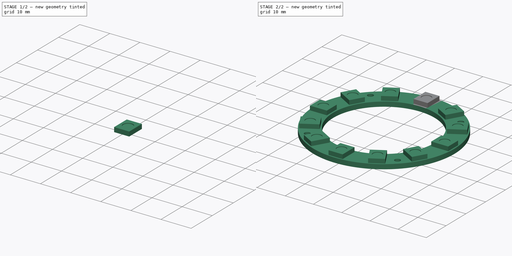
[diagram: build sequence overview — one tinted view per stage of 2, left to right]
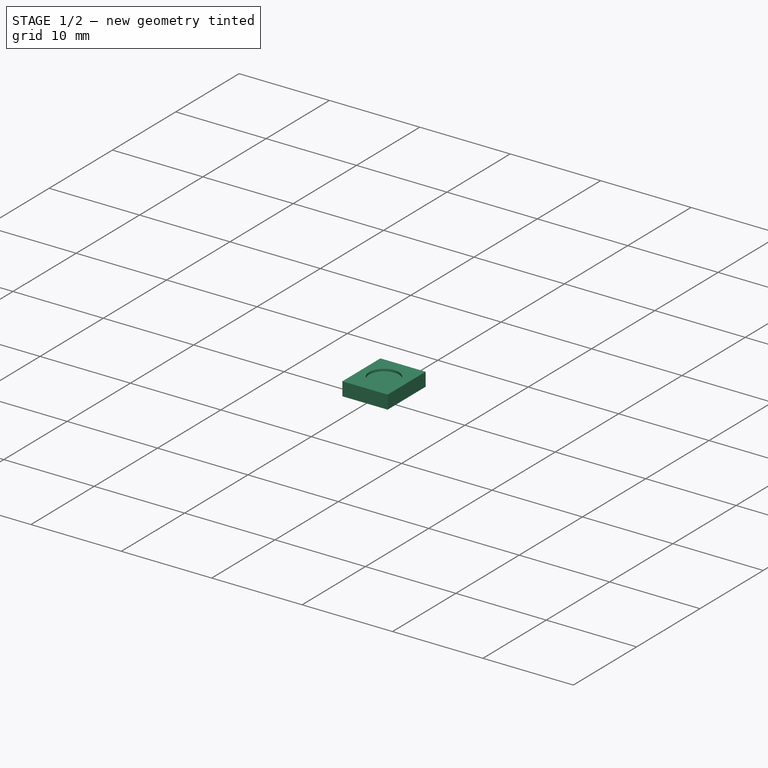
[diagram: stage 1 of 2 — iso view after this stage's code; geometry added in this stage tinted green]
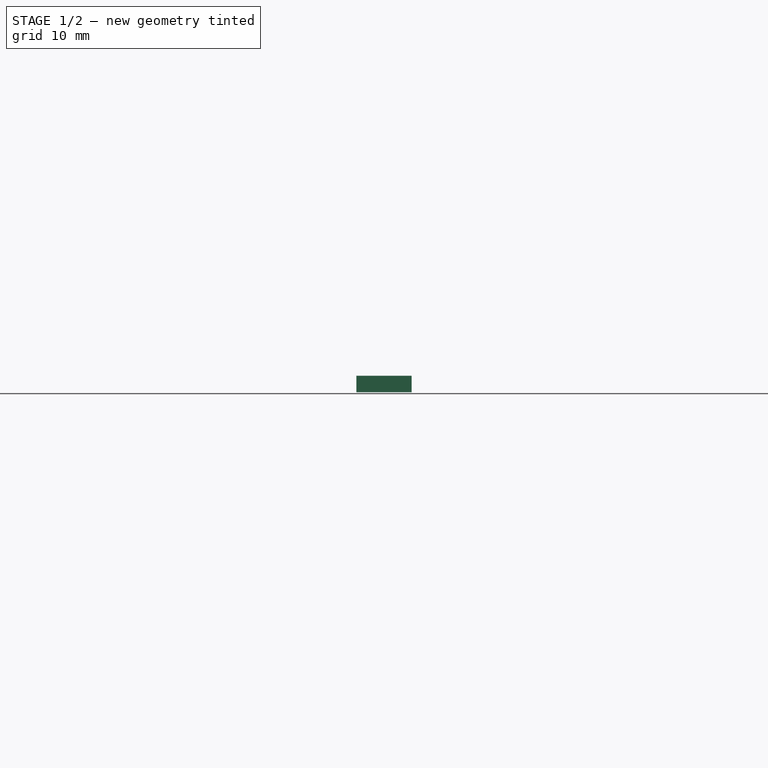
[diagram: stage 1 of 2 — front view after this stage's code; geometry added in this stage tinted green]
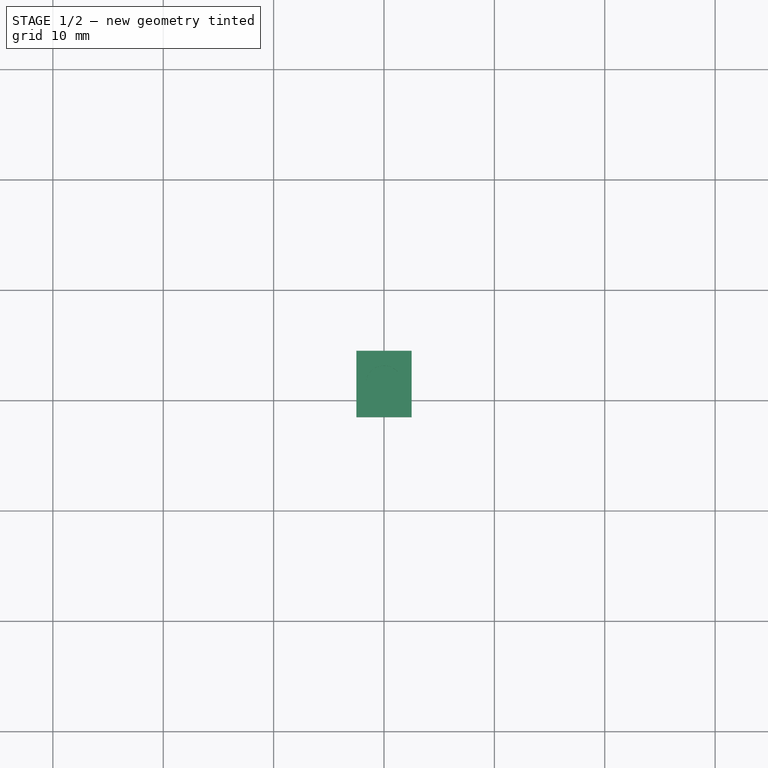
[diagram: stage 1 of 2 — top view after this stage's code; geometry added in this stage tinted green]
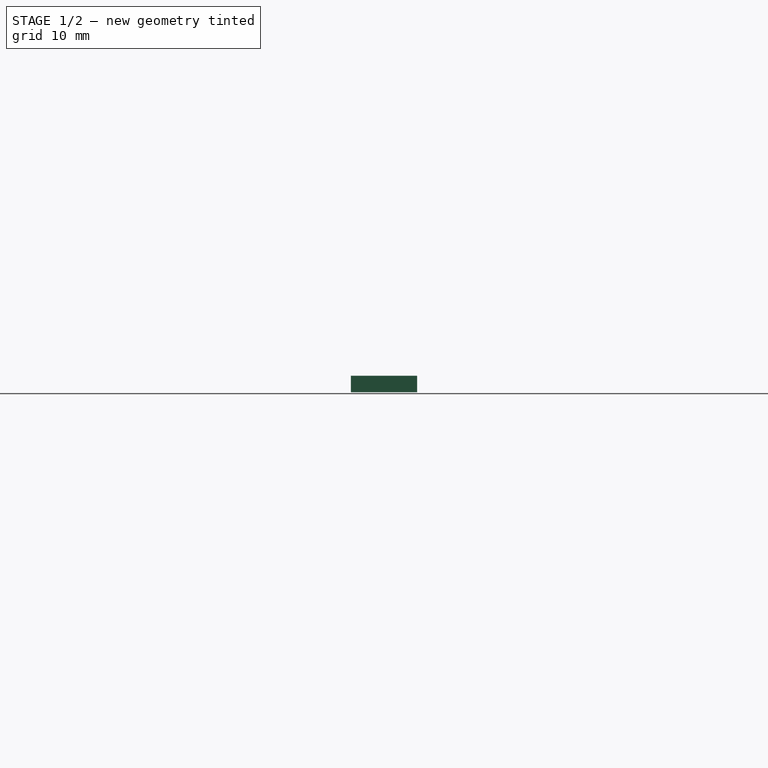
[diagram: stage 1 of 2 — right view after this stage's code; geometry added in this stage tinted green]
FCSTD DOCUMENT  (FreeCAD 0.18R4 (GitTag))
Label: neopixel_rgb_ring_5cm
License: CreativeCommons Attribution-NonCommercial
LicenseURL: http://creativecommons.org/licenses/by-nc/4.0/
objects: Sketcher::SketchObject×3, PartDesign::Pad×2, PartDesign::Body×2, PartDesign::ShapeBinder×1, PartDesign::Pocket×1, Part::FeaturePython×1, App::Part×1
note: 13 computed .brp shape members not serialized (recipe doc carries the construction recipe); baked Part::Feature solids carry a one-line shape summary decoded from their .brp

FEATURE [PartDesign::Body] Body
  Group = -> [Sketch,Pad]
  Origin = -> Origin001
  Tip = -> Pad
FEATURE [PartDesign::ShapeBinder] CopyPad
  Placement = pos=(0,0,1.65) rot=(0,0,1;0rad)
  TraceSupport = false
FEATURE [Sketcher::SketchObject] Sketch001
  MapMode = 5
  Placement = pos=(0,0,1.65) rot=(0,0,1;0rad)
  Support = -> [CopyPad]
  sketch-geometry (6):
    g0: LineSegment StartX=-2.5 StartY=18.5 StartZ=0 EndX=2.5 EndY=18.5 EndZ=0
    g1: LineSegment StartX=2.5 StartY=18.5 StartZ=0 EndX=2.5 EndY=24.5 EndZ=0
    g2: LineSegment StartX=2.5 StartY=24.5 StartZ=0 EndX=-2.5 EndY=24.5 EndZ=0
    g3: LineSegment StartX=-2.5 StartY=24.5 StartZ=0 EndX=-2.5 EndY=18.5 EndZ=0
    g4: LineSegment [constr] StartX=0 StartY=0 StartZ=0 EndX=0 EndY=18 EndZ=0
    g5: LineSegment [constr] StartX=0 StartY=0 StartZ=0 EndX=0 EndY=25 EndZ=0
  constraints (17):
    c: Coincident(g0,g1)
    c: Coincident(g1,g2)
    c: Coincident(g2,g3)
    c: Coincident(g3,g0)
    c: Horizontal(g0)
    c: Horizontal(g2)
    c: Vertical(g1)
    c: Vertical(g3)
    c: DistanceX(g2,g2) = 5
    c: DistanceY(g1,g1) = 6
    c: Coincident(g4,g-1)
    c: PointOnObject(g4,g-2)
    c: Coincident(g5,g-1)
    c: DistanceY(g4,g4) = 18
    c: DistanceY(g5,g5) = 25
    c: Symmetric(g0,g0,g5)
    c: DistanceY(g4,g0) = 0.5
FEATURE [PartDesign::Pad] Pad001
  Length = 1.5
  Length2 = 100
  Placement = pos=(0,0,1.65) rot=(0,0,1;0rad)
  Profile = -> Sketch001
  Type = 0
FEATURE [Sketcher::SketchObject] Sketch002
  MapMode = 5
  Placement = pos=(0,0,3.15) rot=(0,0,1;0rad)
  Support = -> [Pad001]
  sketch-geometry (1):
    g0: Circle CenterX=0 CenterY=21.5 CenterZ=0 NormalX=0 NormalY=0 NormalZ=1 AngleXU=0 Radius=1.65
  constraints (3):
    c: PointOnObject(g0,g-2)
    c: DistanceY(g-1,g0) = 21.5
    c: Radius(g0) = 1.65
FEATURE [PartDesign::Pocket] Pocket
  BaseFeature = -> Pad001
  Length = 0.25
  Length2 = 100
  Placement = pos=(0,0,1.65) rot=(0,0,1;0rad)
  Profile = -> Sketch002
  Type = 0
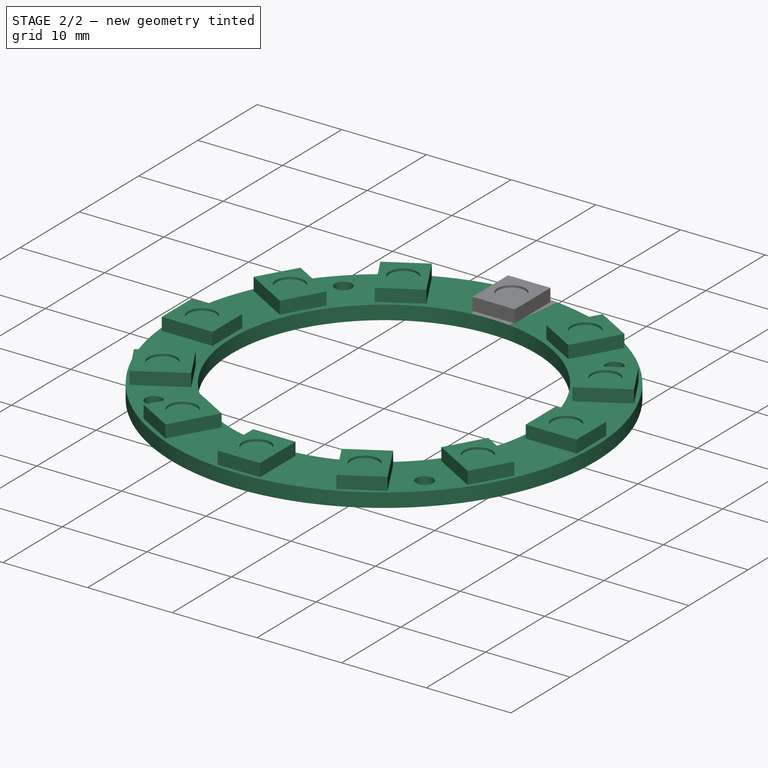
[diagram: stage 2 of 2 — iso view after this stage's code; geometry added in this stage tinted green]
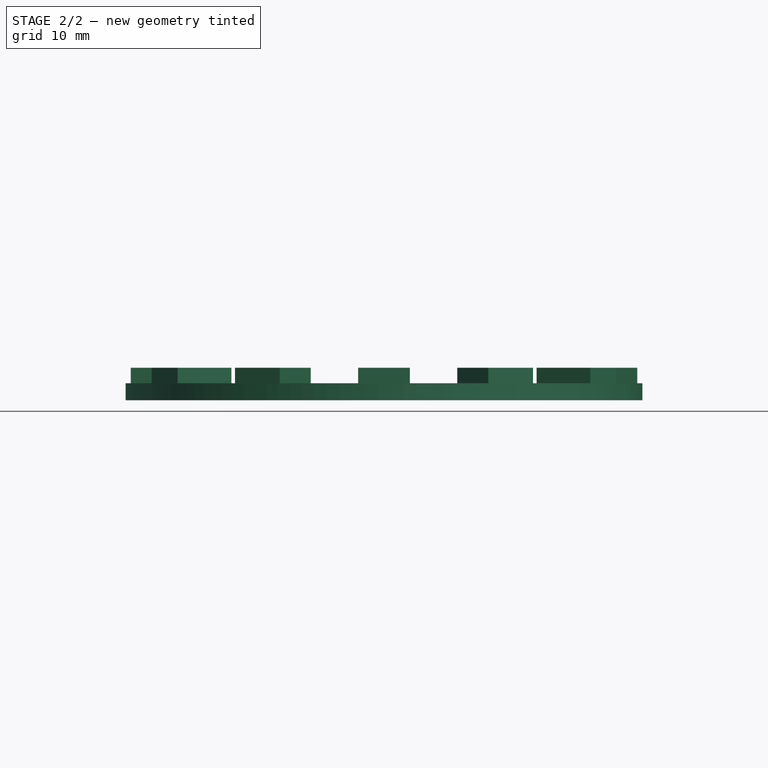
[diagram: stage 2 of 2 — front view after this stage's code; geometry added in this stage tinted green]
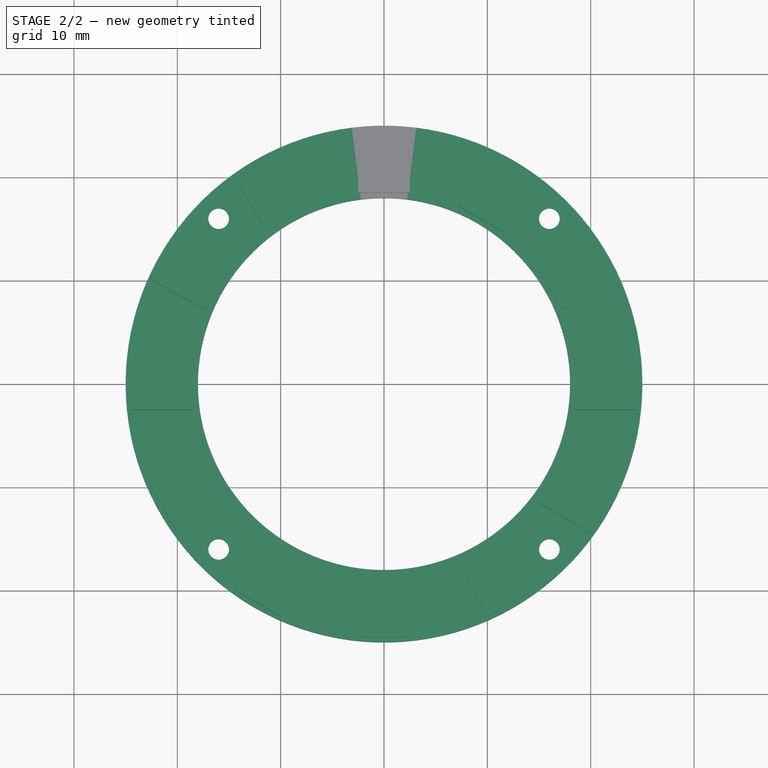
[diagram: stage 2 of 2 — top view after this stage's code; geometry added in this stage tinted green]
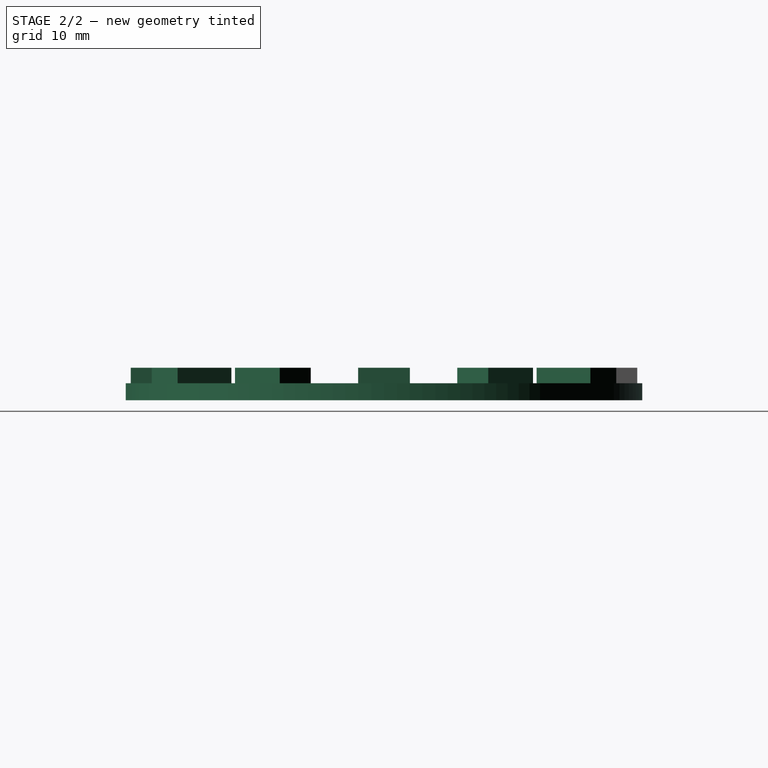
[diagram: stage 2 of 2 — right view after this stage's code; geometry added in this stage tinted green]
FEATURE [Sketcher::SketchObject] Sketch
  MapMode = 5
  Support = -> [XY_Plane001]
  sketch-geometry (10):
    g0: Circle CenterX=0 CenterY=0 CenterZ=0 NormalX=0 NormalY=0 NormalZ=1 AngleXU=0 Radius=18
    g1: Circle CenterX=0 CenterY=0 CenterZ=0 NormalX=0 NormalY=0 NormalZ=1 AngleXU=0 Radius=25
    g2: Circle CenterX=16 CenterY=16 CenterZ=0 NormalX=0 NormalY=0 NormalZ=1 AngleXU=0 Radius=1
    g3: Circle CenterX=-16 CenterY=16 CenterZ=0 NormalX=0 NormalY=0 NormalZ=1 AngleXU=0 Radius=1
    g4: Circle CenterX=-16 CenterY=-16 CenterZ=0 NormalX=0 NormalY=0 NormalZ=1 AngleXU=0 Radius=1
    g5: Circle CenterX=16 CenterY=-16 CenterZ=0 NormalX=0 NormalY=0 NormalZ=1 AngleXU=0 Radius=1
    g6: LineSegment [constr] StartX=-16 StartY=-16 StartZ=0 EndX=16 EndY=-16 EndZ=0
    g7: LineSegment [constr] StartX=16 StartY=-16 StartZ=0 EndX=16 EndY=16 EndZ=0
    g8: LineSegment [constr] StartX=16 StartY=16 StartZ=0 EndX=-16 EndY=16 EndZ=0
    g9: LineSegment [constr] StartX=-16 StartY=16 StartZ=0 EndX=-16 EndY=-16 EndZ=0
  constraints (22):
    c: Coincident(g0,g-1)
    c: Coincident(g1,g0)
    c: Coincident(g6,g7)
    c: Coincident(g7,g8)
    c: Coincident(g8,g9)
    c: Coincident(g9,g6)
    c: Horizontal(g6)
    c: Vertical(g9)
    c: Coincident(g6,g4)
    c: Coincident(g7,g2)
    c: Coincident(g8,g3)
    c: Coincident(g6,g5)
    c: Equal(g7,g8)
    c: Symmetric(g3,g2,g-2)
    c: Symmetric(g2,g5,g-1)
    c: DistanceX(g8,g8) = 32
    c: Equal(g3,g2)
    c: Equal(g2,g5)
    c: Equal(g5,g4)
    c: Radius(g2) = 1
    c: Radius(g0) = 18
    c: Radius(g1) = 25
FEATURE [PartDesign::Pad] Pad
  Length = 1.65
  Length2 = 100
  Profile = -> Sketch
  Type = 0
FEATURE [PartDesign::Body] Body001
  Group = -> [CopyPad,Sketch001,Pad001,Sketch002,Pocket]
  Origin = -> Origin002
  Tip = -> Pocket
FEATURE [Part::FeaturePython] Array  # Draft array (typed FeaturePython)
  Angle = 360
  ArrayType = 1
  Axis = (0,0,1)
  Base = -> Body001
  Center = (0,0,0)
  Fuse = false
  IntervalAxis = (0,0,0)
  IntervalX = (1,0,0)
  IntervalY = (0,1,0)
  IntervalZ = (0,0,1)
  NumberPolar = 12
  NumberX = 1
  NumberY = 1
  NumberZ = 1
FEATURE [App::Part] Part  label="NeoPixel_Ring_5cm"
  Group = -> [Body,Body001,Array]
  Origin = -> Origin
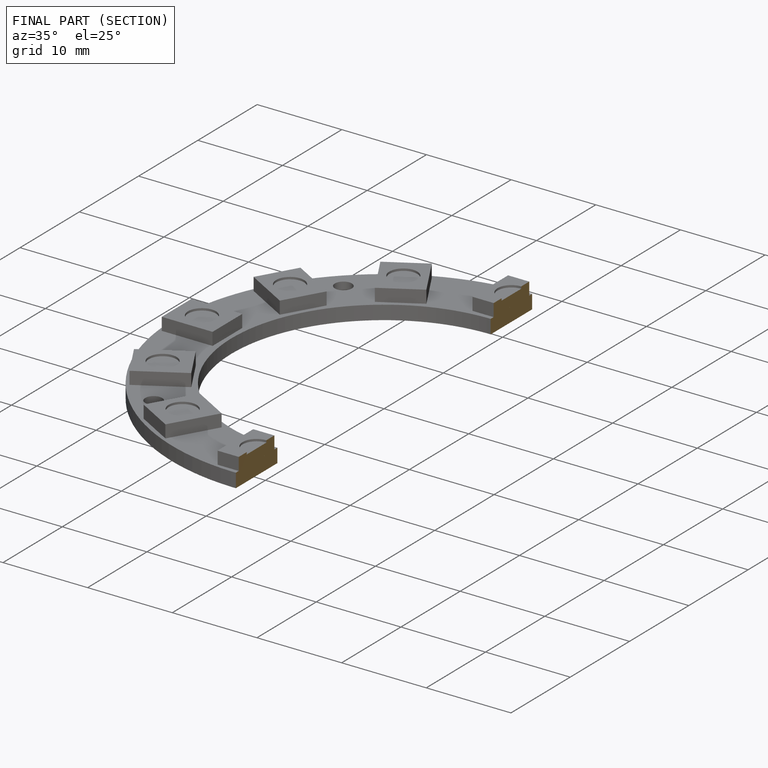
[diagram: finished part — half-section view (interior)]
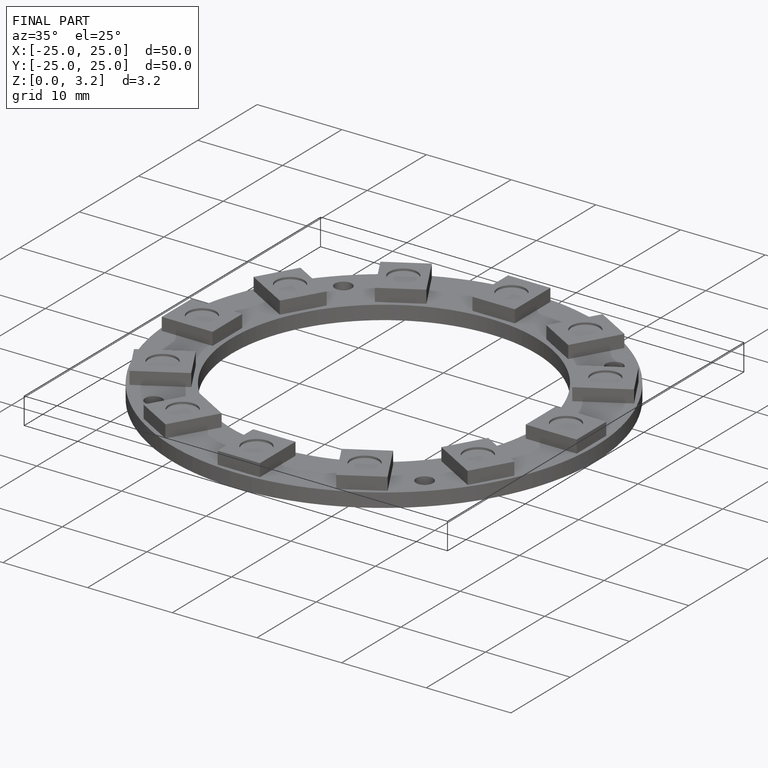
[diagram: finished part — iso view with bounding-box wireframe]
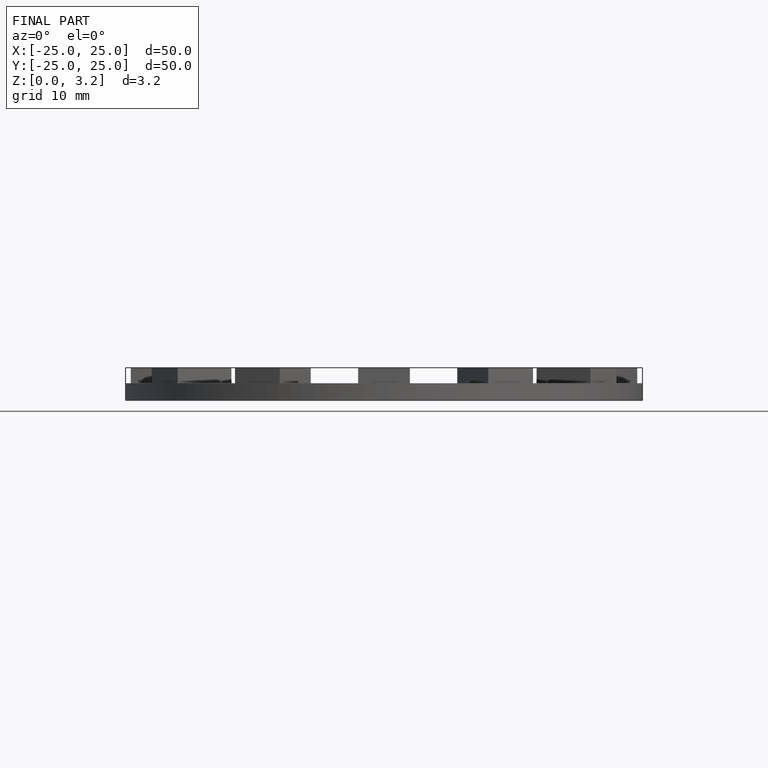
[diagram: finished part — front view with bounding-box wireframe]
